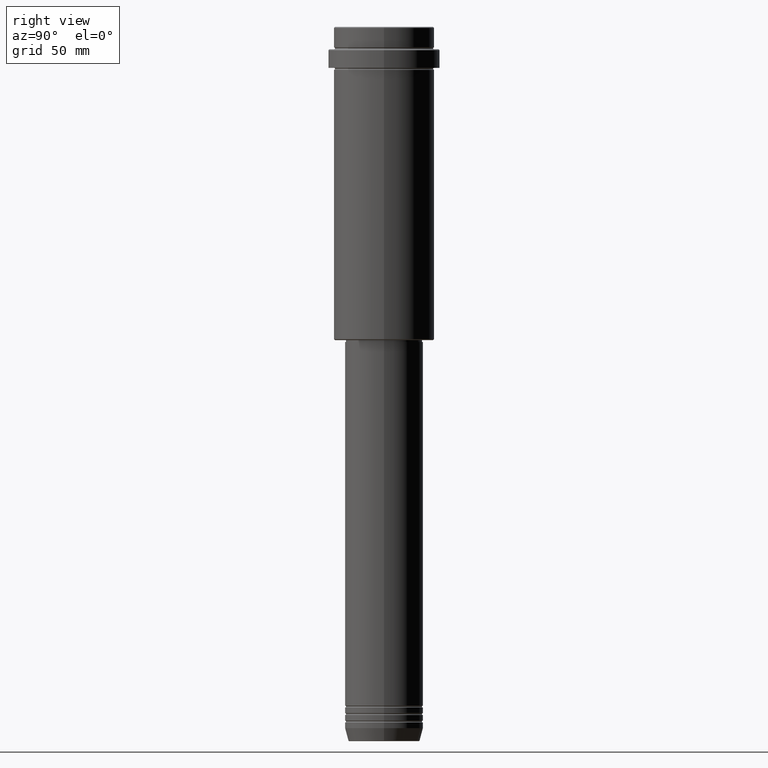
[diagram: clean part render]
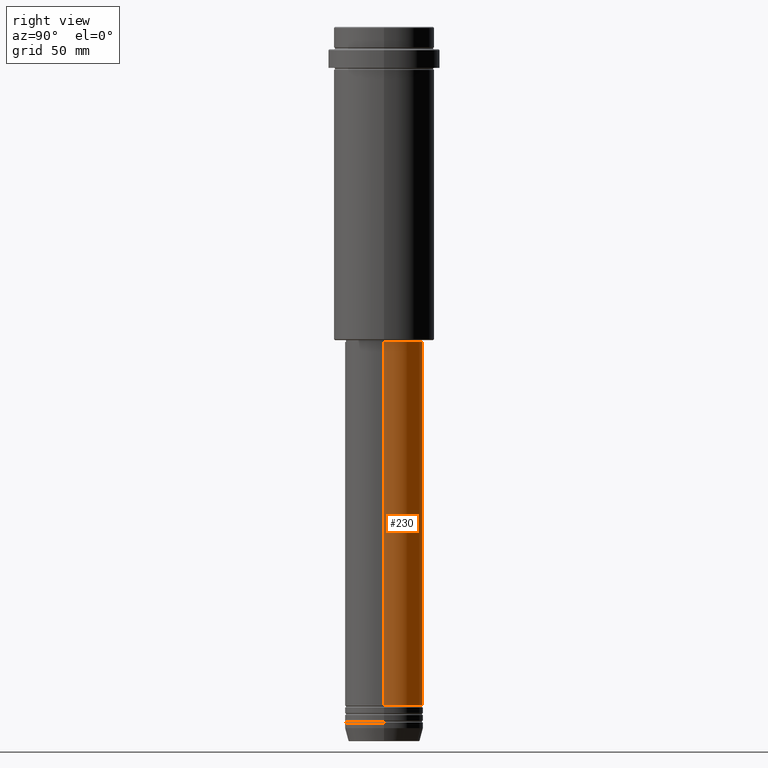
[diagram: same view with one face highlighted and labeled with its STEP entity id]
A machine part, right view. The second image highlights one B-rep face of the part: STEP entity #230.
In plain terms, the highlighted cylindrical surface (partial cylindrical patch) has radius 21 mm, axis along (-0, -0, 1).
Its self-contained STEP definition (entity closure, byte-faithful):
#4 = LINE ( 'NONE', #649, #1402 ) ;
#14 = ORIENTED_EDGE ( 'NONE', *, *, #1289, .F. ) ;
#57 = CARTESIAN_POINT ( 'NONE',  ( -21.00000000000000000, 2.571758278209441661E-15, -363.9999999999998863 ) ) ;
#230 = ADVANCED_FACE ( 'NONE', ( #714 ), #520, .T. ) ;
#240 = VECTOR ( 'NONE', #1192, 1000.000000000000000 ) ;
#279 = DIRECTION ( 'NONE',  ( -0.000000000000000000, -0.000000000000000000, 1.000000000000000000 ) ) ;
#370 = EDGE_CURVE ( 'NONE', #712, #609, #4, .T. ) ;
#401 = DIRECTION ( 'NONE',  ( -0.000000000000000000, -0.000000000000000000, 1.000000000000000000 ) ) ;
#407 = CARTESIAN_POINT ( 'NONE',  ( 21.00000000000000000, 0.000000000000000000, -363.9999999999998863 ) ) ;
#413 = EDGE_LOOP ( 'NONE', ( #919, #952, #1053, #14 ) ) ;
#436 = DIRECTION ( 'NONE',  ( -0.000000000000000000, -0.000000000000000000, 1.000000000000000000 ) ) ;
#502 = CARTESIAN_POINT ( 'NONE',  ( 20.99999999999999645, 0.000000000000000000, -169.0000000000000853 ) ) ;
#508 = CARTESIAN_POINT ( 'NONE',  ( -20.99999999999999645, 2.571758278209441267E-15, -169.0000000000000853 ) ) ;
#513 = DIRECTION ( 'NONE',  ( 1.000000000000000000, 0.000000000000000000, 0.000000000000000000 ) ) ;
#520 = CYLINDRICAL_SURFACE ( 'NONE', #836, 20.99999999999999645 ) ;
#534 = EDGE_CURVE ( 'NONE', #1150, #712, #1069, .T. ) ;
#609 = VERTEX_POINT ( 'NONE', #508 ) ;
#649 = CARTESIAN_POINT ( 'NONE',  ( -20.99999999999999645, 2.571758278209441267E-15, 0.000000000000000000 ) ) ;
#689 = DIRECTION ( 'NONE',  ( -0.000000000000000000, -0.000000000000000000, 1.000000000000000000 ) ) ;
#712 = VERTEX_POINT ( 'NONE', #57 ) ;
#714 = FACE_OUTER_BOUND ( 'NONE', #413, .T. ) ;
#718 = VERTEX_POINT ( 'NONE', #502 ) ;
#764 = CARTESIAN_POINT ( 'NONE',  ( 20.99999999999999645, 0.000000000000000000, 0.000000000000000000 ) ) ;
#812 = DIRECTION ( 'NONE',  ( 1.000000000000000000, 0.000000000000000000, 0.000000000000000000 ) ) ;
#836 = AXIS2_PLACEMENT_3D ( 'NONE', #1142, #279, #513 ) ;
#841 = CARTESIAN_POINT ( 'NONE',  ( 0.000000000000000000, 0.000000000000000000, -169.0000000000000853 ) ) ;
#843 = AXIS2_PLACEMENT_3D ( 'NONE', #841, #401, #1141 ) ;
#854 = LINE ( 'NONE', #764, #240 ) ;
#919 = ORIENTED_EDGE ( 'NONE', *, *, #534, .T. ) ;
#952 = ORIENTED_EDGE ( 'NONE', *, *, #370, .T. ) ;
#1053 = ORIENTED_EDGE ( 'NONE', *, *, #1165, .F. ) ;
#1069 = CIRCLE ( 'NONE', #1176, 21.00000000000000000 ) ;
#1110 = CARTESIAN_POINT ( 'NONE',  ( 0.000000000000000000, 0.000000000000000000, -363.9999999999998863 ) ) ;
#1141 = DIRECTION ( 'NONE',  ( 1.000000000000000000, 0.000000000000000000, 0.000000000000000000 ) ) ;
#1142 = CARTESIAN_POINT ( 'NONE',  ( 0.000000000000000000, 0.000000000000000000, 0.000000000000000000 ) ) ;
#1150 = VERTEX_POINT ( 'NONE', #407 ) ;
#1165 = EDGE_CURVE ( 'NONE', #718, #609, #1203, .T. ) ;
#1176 = AXIS2_PLACEMENT_3D ( 'NONE', #1110, #689, #812 ) ;
#1192 = DIRECTION ( 'NONE',  ( -0.000000000000000000, -0.000000000000000000, 1.000000000000000000 ) ) ;
#1203 = CIRCLE ( 'NONE', #843, 20.99999999999999645 ) ;
#1289 = EDGE_CURVE ( 'NONE', #1150, #718, #854, .T. ) ;
#1402 = VECTOR ( 'NONE', #436, 1000.000000000000000 ) ;